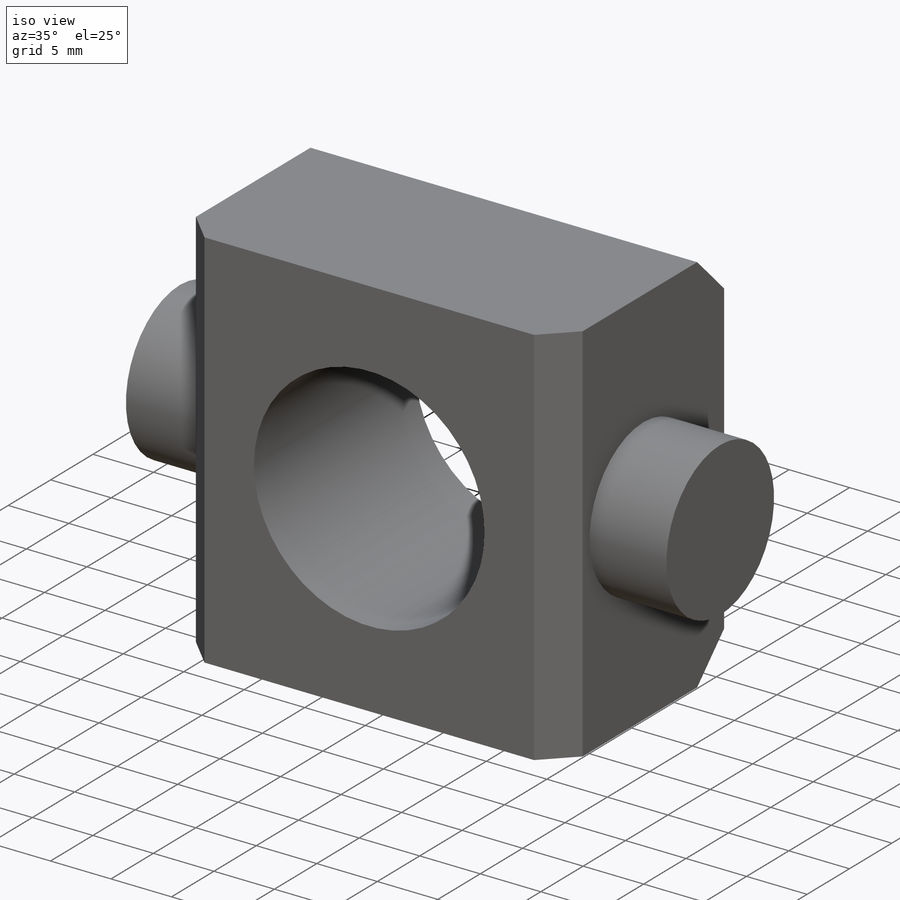
[diagram: iso view]
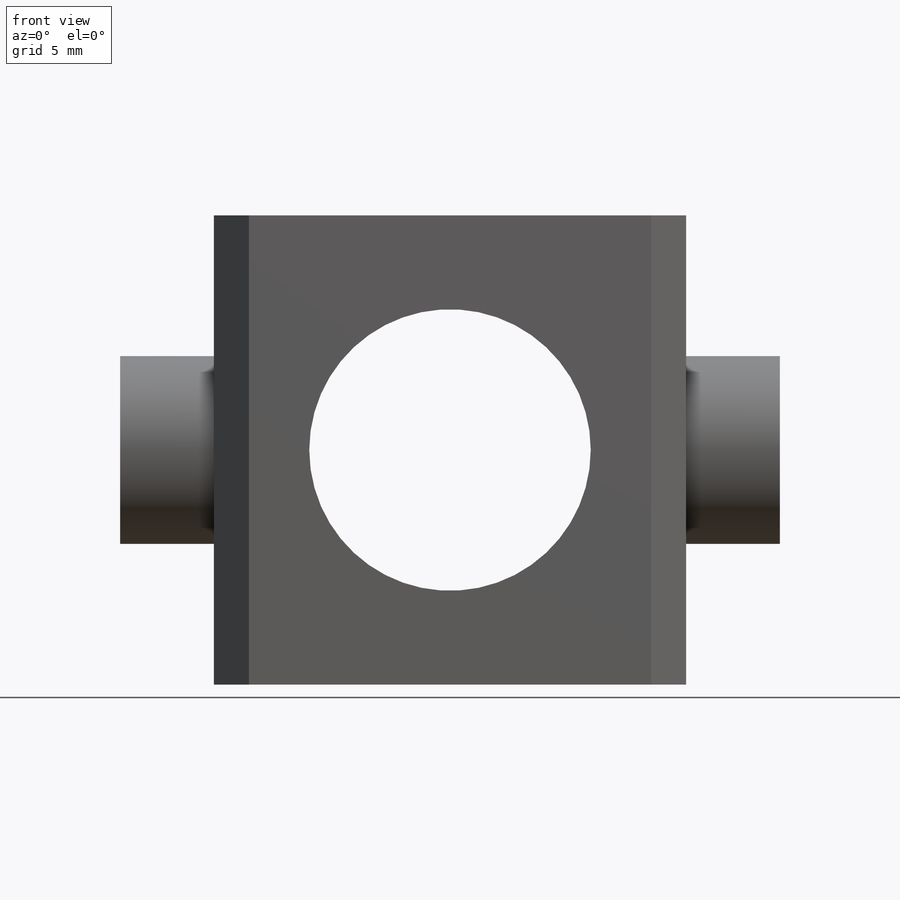
[diagram: front view]
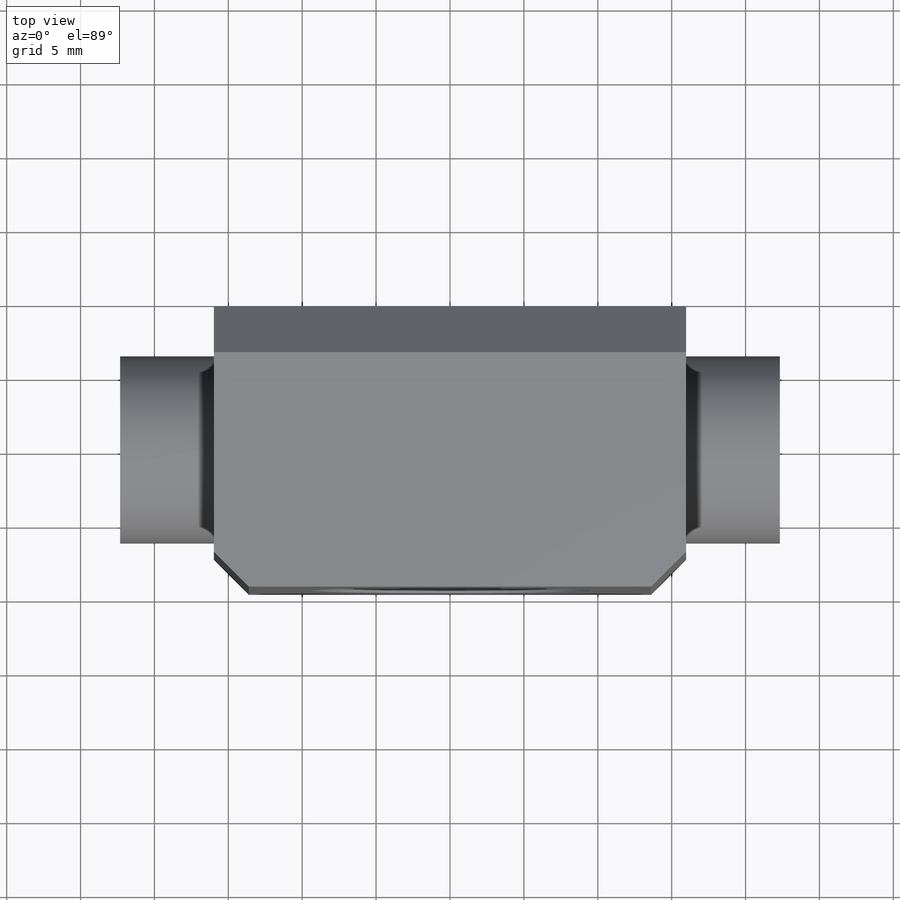
[diagram: top view]
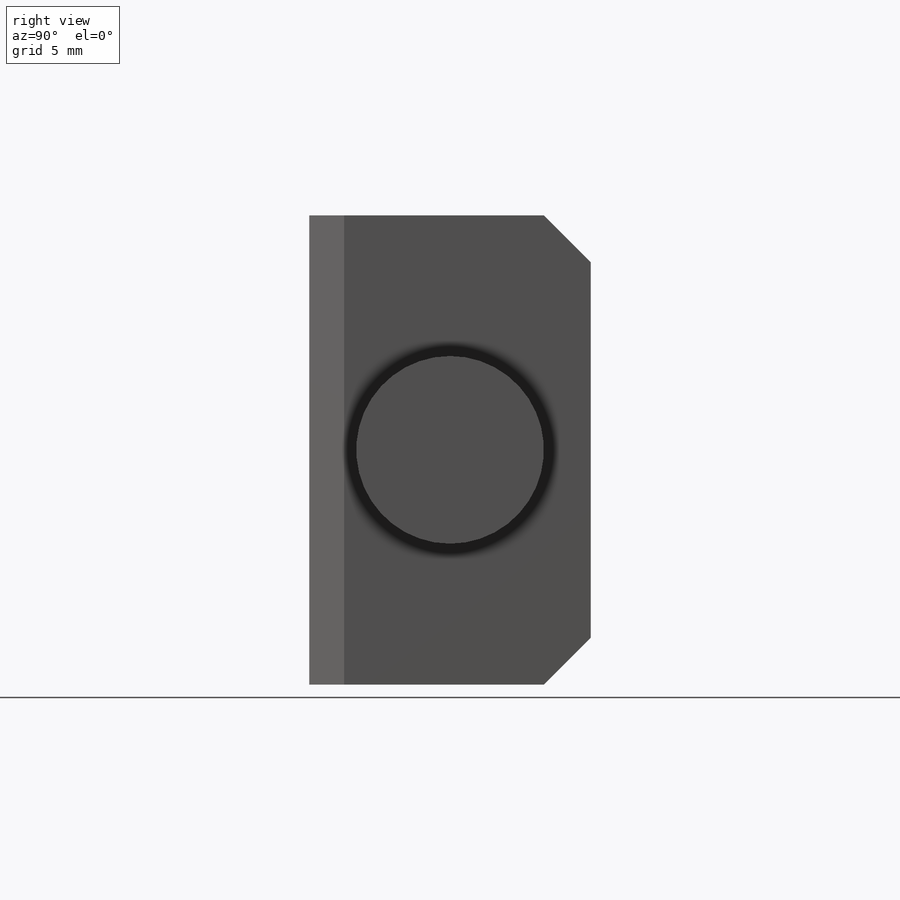
[diagram: right view]
SOLIDWORKS PART (.sldprt)
format: sldprt  version: not decoded by parser v0  size: 282,112 bytes
history: native  units: mm
features: sketch x4, plane x3, extrude x2, chamfer x2, material x1, mirror x1, hole x1 (+11 scaffold rows collapsed)
feature tree (25):
  scaffold x11  (default folders/planes/origin — collapsed)
  material  "NITRONIC 60"
  plane  "XY"
  plane  "XZ"
  plane  "YZ"
  sketch  "Sketch1"  dims[D1=~15.08125mm D2=31.75mm D3=31.9532mm]
  extrude  "Extrude1"  Depth=19.05mm
  sketch  "Sketch2"  dims[D1=12.7mm]
  extrude  "Extrude2"  Depth=6.35mm
  mirror  "Mirror1"
  chamfer  "Chamfer1"  Distance=3.175mm Angle=45deg ID=398536932 cosMaterialEX=27561887000.0mm cosMaterialNUXY=290mm cosMaterialGXY=10879692000.0mm cosMaterialALPX=0.01mm cosMaterialDENS=289.01839mm cosMaterialKX=0.21406mm cosMaterialC=119.44577mm Units=1000mm AnalysisType=0mm MeshType=0mm cosMaterialSIGYLD=29999954mm cosMaterialSIGXT=74999812mm cosMaterialSIGXC=0mm
  hole  "3/4-10-ACME-2C-RH Tapped Hole1"  Diameter=19.05mm Depth=19.05mm
  sketch  "Sketch6"
  sketch  "Sketch7"  dims[hole-wizard template sketch: 59 standard entries collapsed; hole parameters kept: c18.Thread Major Dia.=19.05mm c18.Thru Tap Drill Depth=19.05mm]
  chamfer  "Chamfer2"  Distance=2.3622mm Angle=45deg
decode coverage: 8 of 10 modeling features carry decoded parameters
note: ~ marks probable driven/reference dimensions
note: suppression state not decoded; provenance and decode notes live in map.json
